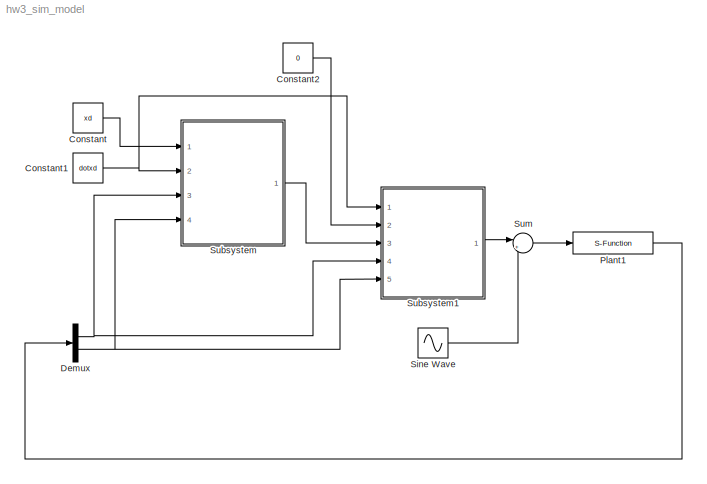
MODEL hw3_sim_model
KIND model
BLOCK [Constant] Constant
  SID = 214
  Value = xd
BLOCK [Constant] Constant1
  SID = 215
  Value = dotxd
BLOCK [Constant] Constant2
  SID = 246
  Value = 0
BLOCK [Demux] Demux
  DisplayOption = bar
  Outputs = 2
  Ports = [1, 2]
  SID = 211
BLOCK [S-Function] Plant1
  EnableBusSupport = off
  FunctionName = plant_sfcn
  Parameters = startpt
  Ports = [1, 1]
  SID = 36
BLOCK [Sin] Sine Wave
  Frequency = 10
  Ports = [0, 1]
  SID = 242
  SampleTime = 0
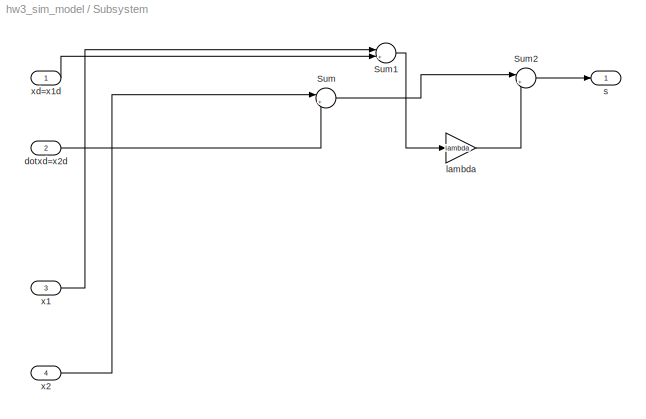
BLOCK [SubSystem] Subsystem
  FunctionWithSeparateData = off
  MaskHideContents = off
  MinAlgLoopOccurrences = off
  Opaque = off
  Ports = [4, 1]
  PropExecContextOutsideSubsystem = off
  RTWSystemCode = Auto
  RequestExecContextInheritance = off
  SID = 207
BLOCK [Sum] Subsystem/Sum
  IconShape = round
  InputSameDT = off
  Inputs = |+-
  OutDataTypeStr = Inherit: Inherit via internal rule
  Ports = [2, 1]
  SID = 216
  SaturateOnIntegerOverflow = off
BLOCK [Sum] Subsystem/Sum1
  IconShape = round
  InputSameDT = off
  Inputs = |+-
  OutDataTypeStr = Inherit: Inherit via internal rule
  Ports = [2, 1]
  SID = 217
  SaturateOnIntegerOverflow = off
BLOCK [Sum] Subsystem/Sum2
  IconShape = round
  InputSameDT = off
  Inputs = |++
  OutDataTypeStr = Inherit: Inherit via internal rule
  Ports = [2, 1]
  SID = 218
  SaturateOnIntegerOverflow = off
BLOCK [Inport] Subsystem/dotxd=x2d
  IconDisplay = Port number
  Port = 2
  SID = 210
BLOCK [Gain] Subsystem/lambda
  Gain = lambda
  OutDataTypeStr = Inherit: Inherit via internal rule
  ParamDataTypeStr = Inherit: Inherit via internal rule
  SID = 219
  SaturateOnIntegerOverflow = off
BLOCK [Outport] Subsystem/s
  IconDisplay = Port number
  SID = 209
BLOCK [Inport] Subsystem/x1
  IconDisplay = Port number
  Port = 3
  SID = 212
BLOCK [Inport] Subsystem/x2
  IconDisplay = Port number
  Port = 4
  SID = 213
BLOCK [Inport] Subsystem/xd=x1d
  IconDisplay = Port number
  SID = 208
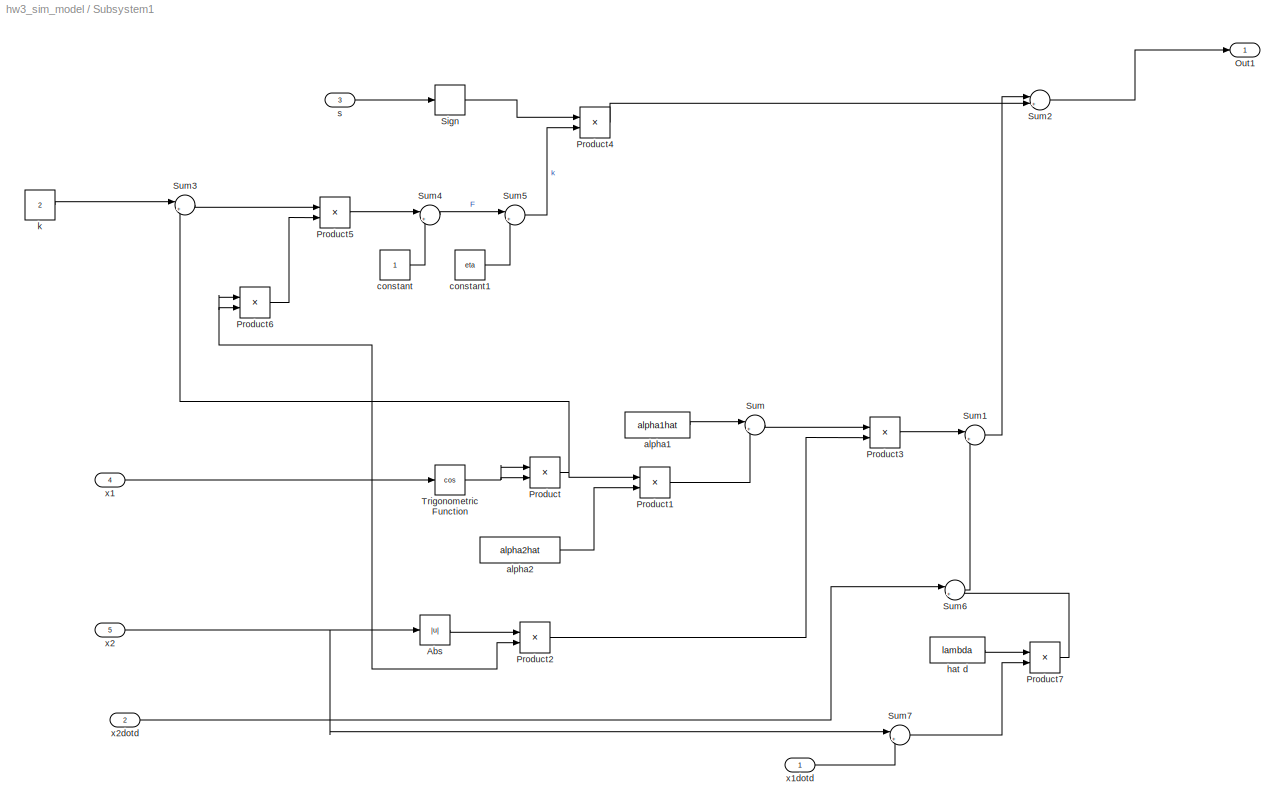
BLOCK [SubSystem] Subsystem1
  FunctionWithSeparateData = off
  MaskHideContents = off
  MinAlgLoopOccurrences = off
  Opaque = off
  Ports = [5, 1]
  PropExecContextOutsideSubsystem = off
  RTWSystemCode = Auto
  RequestExecContextInheritance = off
  SID = 220
BLOCK [Abs] Subsystem1/Abs
  SID = 232
  SaturateOnIntegerOverflow = off
BLOCK [Outport] Subsystem1/Out1
  IconDisplay = Port number
  SID = 222
BLOCK [Product] Subsystem1/Product
  InputSameDT = off
  OutDataTypeStr = Inherit: Inherit via internal rule
  Ports = [2, 1]
  SID = 226
  SaturateOnIntegerOverflow = off
BLOCK [Product] Subsystem1/Product1
  InputSameDT = off
  OutDataTypeStr = Inherit: Inherit via internal rule
  Ports = [2, 1]
  SID = 227
  SaturateOnIntegerOverflow = off
BLOCK [Product] Subsystem1/Product2
  InputSameDT = off
  OutDataTypeStr = Inherit: Inherit via internal rule
  Ports = [2, 1]
  SID = 233
  SaturateOnIntegerOverflow = off
BLOCK [Product] Subsystem1/Product3
  InputSameDT = off
  OutDataTypeStr = Inherit: Inherit via internal rule
  Ports = [2, 1]
  SID = 234
  SaturateOnIntegerOverflow = off
BLOCK [Product] Subsystem1/Product4
  InputSameDT = off
  OutDataTypeStr = Inherit: Inherit via internal rule
  Ports = [2, 1]
  SID = 238
  SaturateOnIntegerOverflow = off
BLOCK [Product] Subsystem1/Product5
  InputSameDT = off
  OutDataTypeStr = Inherit: Inherit via internal rule
  Ports = [2, 1]
  SID = 248
  SaturateOnIntegerOverflow = off
BLOCK [Product] Subsystem1/Product6
  InputSameDT = off
  OutDataTypeStr = Inherit: Inherit via internal rule
  Ports = [2, 1]
  SID = 249
  SaturateOnIntegerOverflow = off
BLOCK [Product] Subsystem1/Product7
  InputSameDT = off
  OutDataTypeStr = Inherit: Inherit via internal rule
  Ports = [2, 1]
  SID = 256
  SaturateOnIntegerOverflow = off
BLOCK [Signum] Subsystem1/Sign
  SID = 240
BLOCK [Sum] Subsystem1/Sum
  IconShape = round
  InputSameDT = off
  Inputs = |++
  OutDataTypeStr = Inherit: Inherit via internal rule
  Ports = [2, 1]
  SID = 229
  SaturateOnIntegerOverflow = off
BLOCK [Sum] Subsystem1/Sum1
  IconShape = round
  InputSameDT = off
  Inputs = |++
  OutDataTypeStr = Inherit: Inherit via internal rule
  Ports = [2, 1]
  SID = 235
  SaturateOnIntegerOverflow = off
BLOCK [Sum] Subsystem1/Sum2
  IconShape = round
  InputSameDT = off
  Inputs = |+-
  OutDataTypeStr = Inherit: Inherit via internal rule
  Ports = [2, 1]
  SID = 237
  SaturateOnIntegerOverflow = off
BLOCK [Sum] Subsystem1/Sum3
  IconShape = round
  InputSameDT = off
  Inputs = |++
  OutDataTypeStr = Inherit: Inherit via internal rule
  Ports = [2, 1]
  SID = 247
  SaturateOnIntegerOverflow = off
BLOCK [Sum] Subsystem1/Sum4
  IconShape = round
  InputSameDT = off
  Inputs = |++
  OutDataTypeStr = Inherit: Inherit via internal rule
  Ports = [2, 1]
  SID = 250
  SaturateOnIntegerOverflow = off
BLOCK [Sum] Subsystem1/Sum5
  IconShape = round
  InputSameDT = off
  Inputs = |++
  OutDataTypeStr = Inherit: Inherit via internal rule
  Ports = [2, 1]
  SID = 253
  SaturateOnIntegerOverflow = off
BLOCK [Sum] Subsystem1/Sum6
  IconShape = round
  InputSameDT = off
  Inputs = |+-
  OutDataTypeStr = Inherit: Inherit via internal rule
  Ports = [2, 1]
  SID = 255
  SaturateOnIntegerOverflow = off
BLOCK [Sum] Subsystem1/Sum7
  IconShape = round
  InputSameDT = off
  Inputs = |+-
  OutDataTypeStr = Inherit: Inherit via internal rule
  Ports = [2, 1]
  SID = 258
  SaturateOnIntegerOverflow = off
BLOCK [Trigonometry] Subsystem1/Trigonometric Function
  Operator = cos
  Ports = [1, 1]
  SID = 225
BLOCK [Constant] Subsystem1/alpha1
  SID = 231
  Value = alpha1hat
BLOCK [Constant] Subsystem1/alpha2
  SID = 228
  Value = alpha2hat
BLOCK [Constant] Subsystem1/constant
  SID = 251
BLOCK [Constant] Subsystem1/constant1
  SID = 252
  Value = eta
BLOCK [Constant] Subsystem1/hat d
  SID = 236
  Value = lambda
BLOCK [Constant] Subsystem1/k
  SID = 239
  Value = 2
BLOCK [Inport] Subsystem1/s
  IconDisplay = Port number
  Port = 3
  SID = 221
BLOCK [Inport] Subsystem1/x1
  IconDisplay = Port number
  Port = 4
  SID = 223
BLOCK [Inport] Subsystem1/x1dotd
  IconDisplay = Port number
  SID = 257
BLOCK [Inport] Subsystem1/x2
  IconDisplay = Port number
  Port = 5
  SID = 224
BLOCK [Inport] Subsystem1/x2dotd
  IconDisplay = Port number
  Port = 2
  SID = 254
BLOCK [Sum] Sum
  IconShape = round
  InputSameDT = off
  Inputs = |++
  OutDataTypeStr = Inherit: Inherit via internal rule
  Ports = [2, 1]
  SID = 243
  SaturateOnIntegerOverflow = off
NET Constant1:1 -> Subsystem1:1, Subsystem:2
LINE Constant2:1 -> Subsystem1:2
LINE Constant:1 -> Subsystem:1
NET Demux:1 -> Subsystem1:4, Subsystem:3
NET Demux:2 -> Subsystem1:5, Subsystem:4
LINE Plant1:1 -> Demux:1
LINE Sine Wave:1 -> Sum:2
LINE Subsystem/Sum1:1 -> Subsystem/lambda:1
LINE Subsystem/Sum2:1 -> Subsystem/s:1
LINE Subsystem/Sum:1 -> Subsystem/Sum2:1
LINE Subsystem/dotxd=x2d:1 -> Subsystem/Sum:2
LINE Subsystem/lambda:1 -> Subsystem/Sum2:2
LINE Subsystem/x1:1 -> Subsystem/Sum1:1
LINE Subsystem/x2:1 -> Subsystem/Sum:1
LINE Subsystem/xd=x1d:1 -> Subsystem/Sum1:2
LINE Subsystem1/Abs:1 -> Subsystem1/Product2:1
LINE Subsystem1/Product1:1 -> Subsystem1/Sum:2
LINE Subsystem1/Product2:1 -> Subsystem1/Product3:2
LINE Subsystem1/Product3:1 -> Subsystem1/Sum1:1
LINE Subsystem1/Product4:1 -> Subsystem1/Sum2:2
LINE Subsystem1/Product5:1 -> Subsystem1/Sum4:1
LINE Subsystem1/Product6:1 -> Subsystem1/Product5:2
LINE Subsystem1/Product7:1 -> Subsystem1/Sum6:2
NET Subsystem1/Product:1 -> Subsystem1/Product1:1, Subsystem1/Sum3:2
LINE Subsystem1/Sign:1 -> Subsystem1/Product4:1
LINE Subsystem1/Sum1:1 -> Subsystem1/Sum2:1
LINE Subsystem1/Sum2:1 -> Subsystem1/Out1:1
LINE Subsystem1/Sum3:1 -> Subsystem1/Product5:1
LINE Subsystem1/Sum4:1 -> Subsystem1/Sum5:1
LINE Subsystem1/Sum5:1 -> Subsystem1/Product4:2
LINE Subsystem1/Sum6:1 -> Subsystem1/Sum1:2
LINE Subsystem1/Sum7:1 -> Subsystem1/Product7:2
LINE Subsystem1/Sum:1 -> Subsystem1/Product3:1
NET Subsystem1/Trigonometric Function:1 -> Subsystem1/Product:1, Subsystem1/Product:2
LINE Subsystem1/alpha1:1 -> Subsystem1/Sum:1
LINE Subsystem1/alpha2:1 -> Subsystem1/Product1:2
LINE Subsystem1/constant1:1 -> Subsystem1/Sum5:2
LINE Subsystem1/constant:1 -> Subsystem1/Sum4:2
LINE Subsystem1/hat d:1 -> Subsystem1/Product7:1
LINE Subsystem1/k:1 -> Subsystem1/Sum3:1
LINE Subsystem1/s:1 -> Subsystem1/Sign:1
LINE Subsystem1/x1:1 -> Subsystem1/Trigonometric Function:1
LINE Subsystem1/x1dotd:1 -> Subsystem1/Sum7:2
NET Subsystem1/x2:1 -> Subsystem1/Abs:1, Subsystem1/Product2:2, Subsystem1/Product6:1, Subsystem1/Product6:2, Subsystem1/Sum7:1
LINE Subsystem1/x2dotd:1 -> Subsystem1/Sum6:1
LINE Subsystem1:1 -> Sum:1
LINE Subsystem:1 -> Subsystem1:3
LINE Sum:1 -> Plant1:1
note: NET lines group one-source signal fan-out (src -> all destinations, sorted); 1:1 wires keep LINE
